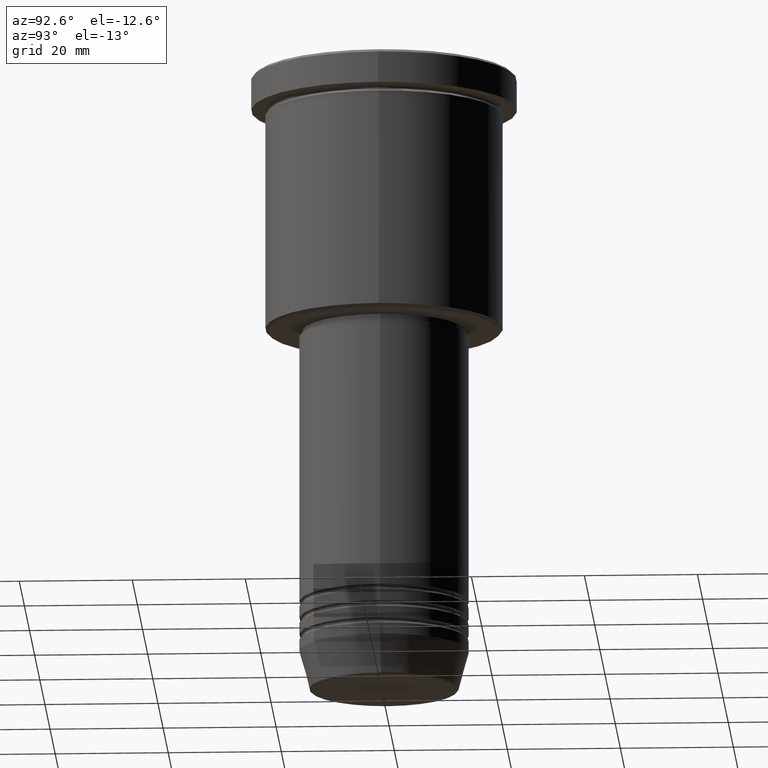
[diagram: clean part render]
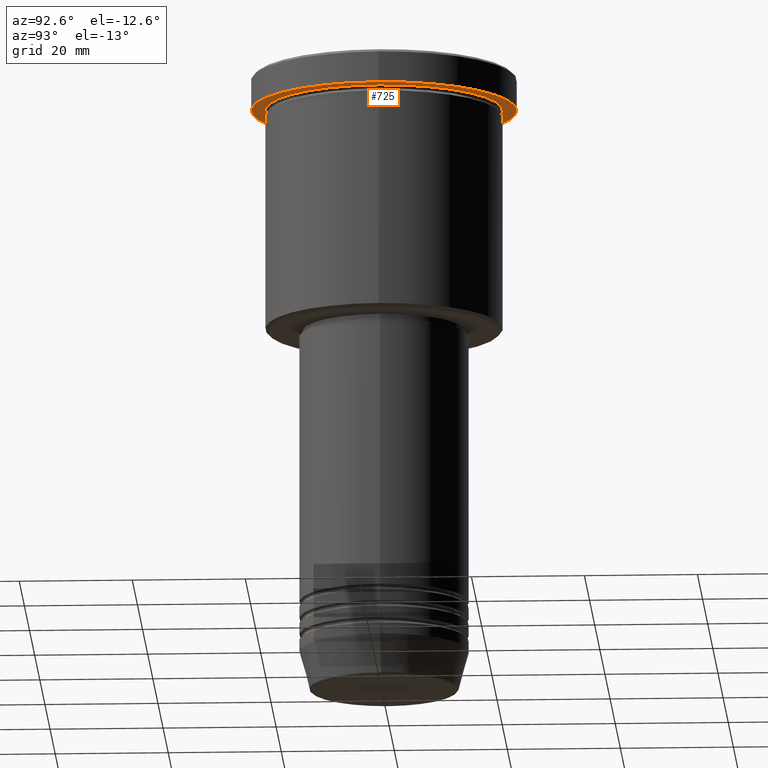
[diagram: same view with one face highlighted and labeled with its STEP entity id]
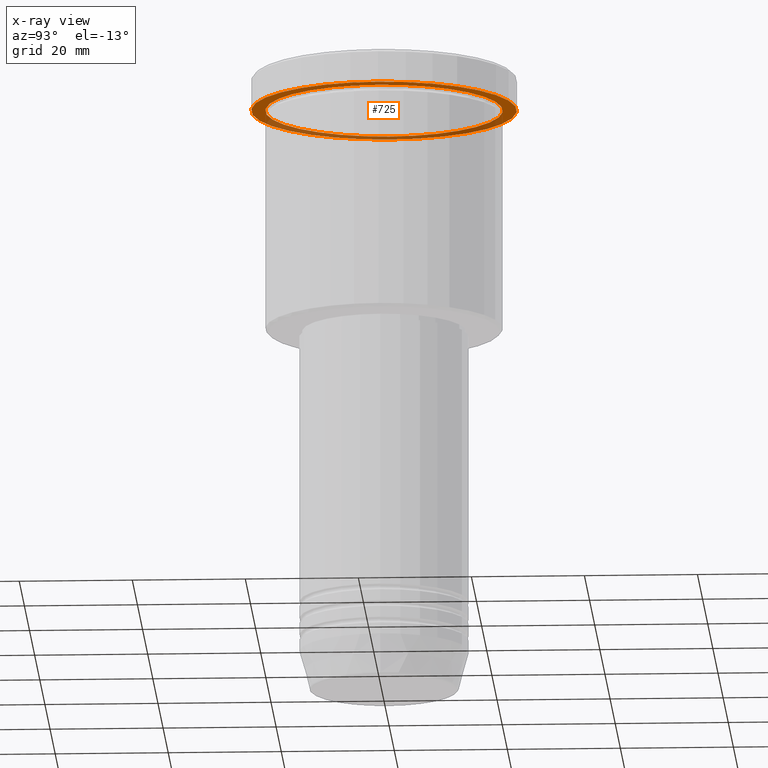
[diagram: x-ray of the same camera — body ghosted, the highlighted face saturated]
A machine part, auxiliary view. The second image highlights one B-rep face of the part: STEP entity #725.
The next image is the same camera in x-ray: the body ghosted, the highlighted face saturated — about 38% of this face is hidden behind the body in this view.
In plain terms, the highlighted planar face has unit normal (0, 0, -1).
Its self-contained STEP definition (entity closure, byte-faithful):
#26 = ORIENTED_EDGE ( 'NONE', *, *, #746, .T. ) ;
#73 = CIRCLE ( 'NONE', #188, 21.00000000000000000 ) ;
#88 = AXIS2_PLACEMENT_3D ( 'NONE', #1120, #418, #216 ) ;
#165 = DIRECTION ( 'NONE',  ( -1.000000000000000000, 0.000000000000000000, -0.000000000000000000 ) ) ;
#184 = CARTESIAN_POINT ( 'NONE',  ( 21.00000000000000000, 2.571758278209441661E-15, -5.999999999999994671 ) ) ;
#188 = AXIS2_PLACEMENT_3D ( 'NONE', #385, #1010, #263 ) ;
#196 = CARTESIAN_POINT ( 'NONE',  ( -23.50000000000000000, 2.877919977996280320E-15, -5.999999999999994671 ) ) ;
#199 = VERTEX_POINT ( 'NONE', #196 ) ;
#203 = CIRCLE ( 'NONE', #914, 21.00000000000000000 ) ;
#216 = DIRECTION ( 'NONE',  ( 1.000000000000000000, 0.000000000000000000, 0.000000000000000000 ) ) ;
#219 = ORIENTED_EDGE ( 'NONE', *, *, #999, .F. ) ;
#222 = CIRCLE ( 'NONE', #88, 23.50000000000000000 ) ;
#230 = DIRECTION ( 'NONE',  ( -0.000000000000000000, -0.000000000000000000, 1.000000000000000000 ) ) ;
#241 = FACE_BOUND ( 'NONE', #670, .T. ) ;
#259 = EDGE_CURVE ( 'NONE', #363, #498, #203, .T. ) ;
#263 = DIRECTION ( 'NONE',  ( -1.000000000000000000, 0.000000000000000000, 0.000000000000000000 ) ) ;
#264 = EDGE_CURVE ( 'NONE', #199, #520, #222, .T. ) ;
#311 = AXIS2_PLACEMENT_3D ( 'NONE', #898, #355, #961 ) ;
#355 = DIRECTION ( 'NONE',  ( -0.000000000000000000, -0.000000000000000000, 1.000000000000000000 ) ) ;
#358 = CARTESIAN_POINT ( 'NONE',  ( 0.000000000000000000, 23.50000000000000000, -5.999999999999994671 ) ) ;
#362 = FACE_OUTER_BOUND ( 'NONE', #567, .T. ) ;
#363 = VERTEX_POINT ( 'NONE', #703 ) ;
#372 = CIRCLE ( 'NONE', #311, 23.50000000000000000 ) ;
#385 = CARTESIAN_POINT ( 'NONE',  ( 0.000000000000000000, 0.000000000000000000, -5.999999999999994671 ) ) ;
#418 = DIRECTION ( 'NONE',  ( -0.000000000000000000, -0.000000000000000000, 1.000000000000000000 ) ) ;
#427 = DIRECTION ( 'NONE',  ( -1.000000000000000000, 0.000000000000000000, 0.000000000000000000 ) ) ;
#498 = VERTEX_POINT ( 'NONE', #184 ) ;
#520 = VERTEX_POINT ( 'NONE', #1099 ) ;
#533 = DIRECTION ( 'NONE',  ( 0.000000000000000000, 0.000000000000000000, -1.000000000000000000 ) ) ;
#567 = EDGE_LOOP ( 'NONE', ( #219, #819 ) ) ;
#579 = AXIS2_PLACEMENT_3D ( 'NONE', #358, #533, #165 ) ;
#670 = EDGE_LOOP ( 'NONE', ( #1033, #26 ) ) ;
#703 = CARTESIAN_POINT ( 'NONE',  ( -21.00000000000000000, 0.000000000000000000, -5.999999999999994671 ) ) ;
#715 = PLANE ( 'NONE',  #579 ) ;
#725 = ADVANCED_FACE ( 'NONE', ( #241, #362 ), #715, .T. ) ;
#746 = EDGE_CURVE ( 'NONE', #498, #363, #73, .T. ) ;
#819 = ORIENTED_EDGE ( 'NONE', *, *, #264, .F. ) ;
#898 = CARTESIAN_POINT ( 'NONE',  ( 0.000000000000000000, 0.000000000000000000, -5.999999999999994671 ) ) ;
#914 = AXIS2_PLACEMENT_3D ( 'NONE', #1088, #230, #427 ) ;
#961 = DIRECTION ( 'NONE',  ( 1.000000000000000000, 0.000000000000000000, 0.000000000000000000 ) ) ;
#999 = EDGE_CURVE ( 'NONE', #520, #199, #372, .T. ) ;
#1010 = DIRECTION ( 'NONE',  ( -0.000000000000000000, -0.000000000000000000, 1.000000000000000000 ) ) ;
#1033 = ORIENTED_EDGE ( 'NONE', *, *, #259, .T. ) ;
#1088 = CARTESIAN_POINT ( 'NONE',  ( 0.000000000000000000, 0.000000000000000000, -5.999999999999994671 ) ) ;
#1099 = CARTESIAN_POINT ( 'NONE',  ( 23.50000000000000000, 0.000000000000000000, -5.999999999999994671 ) ) ;
#1120 = CARTESIAN_POINT ( 'NONE',  ( 0.000000000000000000, 0.000000000000000000, -5.999999999999994671 ) ) ;